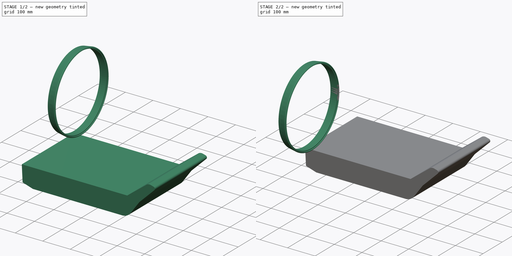
[diagram: build sequence overview — one tinted view per stage of 2, left to right]
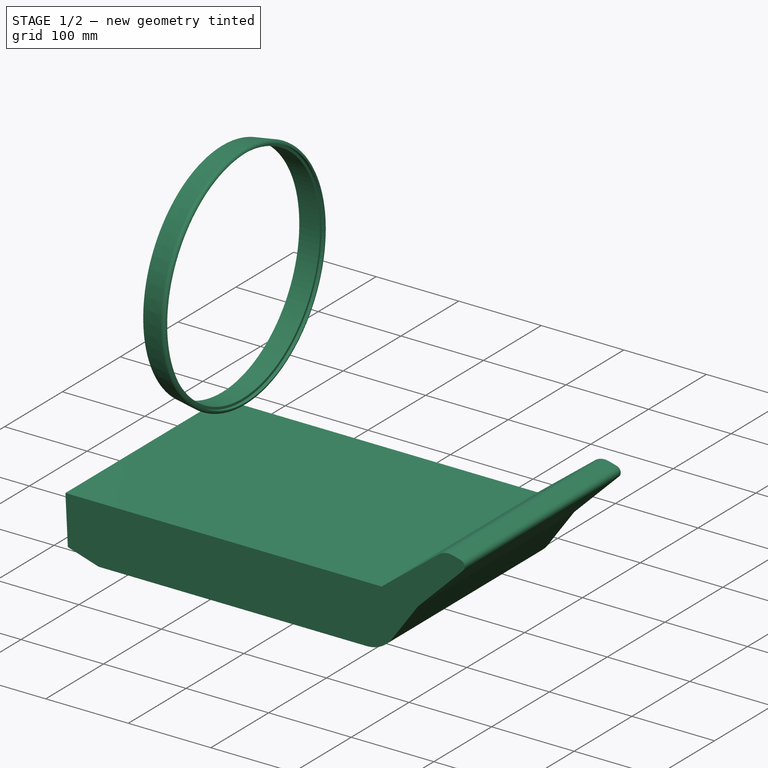
[diagram: stage 1 of 2 — iso view after this stage's code; geometry added in this stage tinted green]
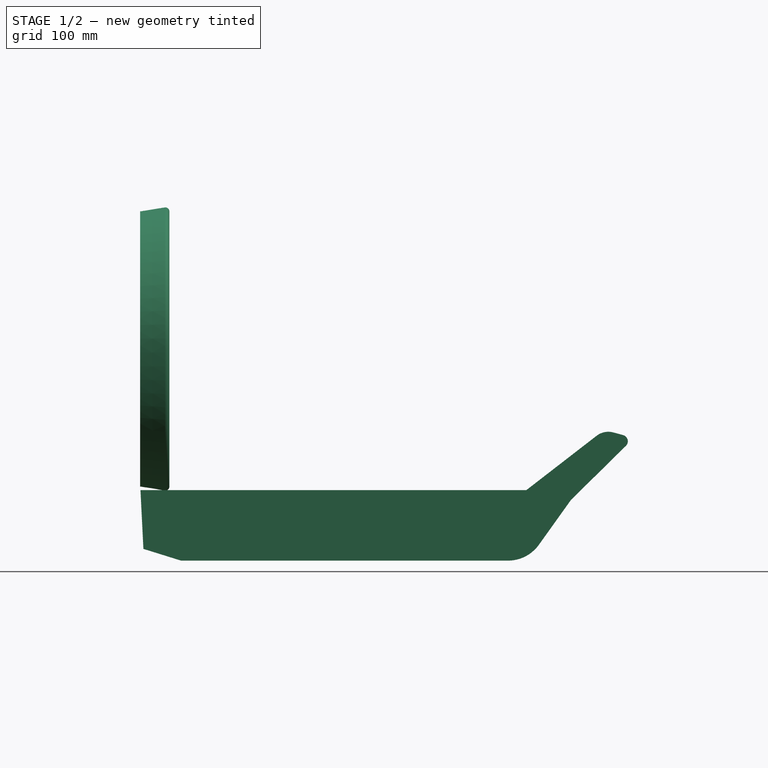
[diagram: stage 1 of 2 — front view after this stage's code; geometry added in this stage tinted green]
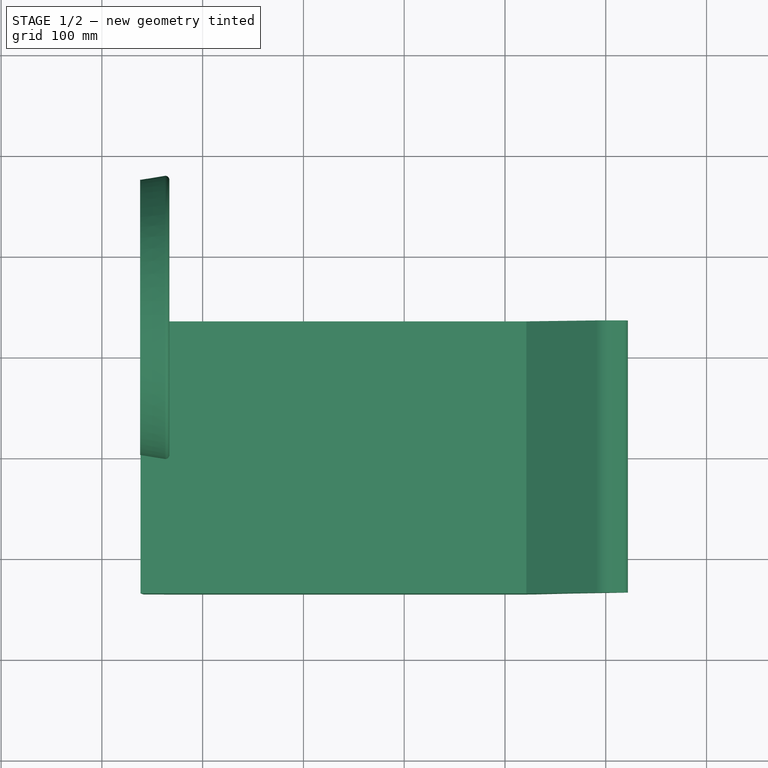
[diagram: stage 1 of 2 — top view after this stage's code; geometry added in this stage tinted green]
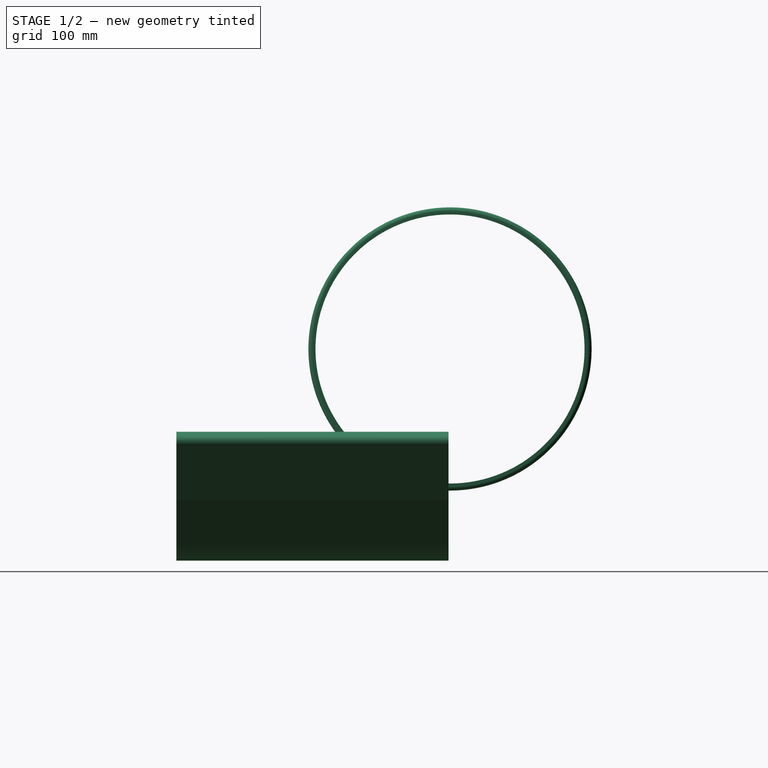
[diagram: stage 1 of 2 — right view after this stage's code; geometry added in this stage tinted green]
FCSTD DOCUMENT  (FreeCAD 0.16R6710 (Git))
Label: Untitled
License: All rights reserved
LicenseURL: http://en.wikipedia.org/wiki/All_rights_reserved
objects: Sketcher::SketchObject×3, App::MeasureDistance×3, PartDesign::Pad×2, Part::Feature×2, PartDesign::Revolution×1, Part::Mirroring×1, Part::FeaturePython×1, Part::Cut×1
note: 15 computed .brp shape members not serialized (recipe doc carries the construction recipe); baked Part::Feature solids carry a one-line shape summary decoded from their .brp

FEATURE [Sketcher::SketchObject] Sketch001
  Placement = pos=(-162,136.5,210) rot=(1,0,0;1.5708rad)
  sketch-geometry (6):
    g0: LineSegment StartX=0 StartY=133.5 StartZ=0 EndX=25 EndY=133.5 EndZ=0
    g1: LineSegment StartX=24.36 StartY=140.448 StartZ=0 EndX=0 EndY=136.5 EndZ=0
    g2: LineSegment StartX=0 StartY=136.5 StartZ=0 EndX=0 EndY=133.5 EndZ=0
    g3: LineSegment StartX=29 StartY=136.5 StartZ=0 EndX=25 EndY=136.5 EndZ=0
    g4: LineSegment StartX=25 StartY=136.5 StartZ=0 EndX=25 EndY=133.5 EndZ=0
    g5: ArcOfCircle CenterX=25 CenterY=136.5 CenterZ=0 NormalX=0 NormalY=0 NormalZ=1 Radius=4 StartAngle=0 EndAngle=1.73149
  constraints (17):
    c: PointOnObject(g0,g-2)
    c: Horizontal(g0)
    c: Coincident(g2,g1)
    c: Coincident(g2,g0)
    c: Perpendicular(g2,g0)
    c: Horizontal(g3)
    c: Coincident(g4,g3)
    c: Vertical(g4)
    c: Distance(g0) = 25
    c: Distance(g2) = 3
    c: Tangent(g1,g5) = -1.5708
    c: DistanceY(g0,g3) = 3
    c: Coincident(g4,g0)
    c: DistanceY(g-1,g0) = 133.5
    c: Coincident(g5,g3)
    c: Coincident(g5,g3)
    c: Distance(g3) = 4
FEATURE [PartDesign::Revolution] Revolution
  Angle = 360
  Axis = (1,0,0)
  Base = (-162,136.5,210)
  Placement = pos=(-162,136.5,210) rot=(1,0,0;1.5708rad)
  ReferenceAxis = -> Sketch001 [H_Axis]
  Sketch = -> Sketch001
FEATURE [Part::FeaturePython] Ship  # WARN: FeaturePython — macro-defined, semantics opaque (R4)
  Breadth = 270
  Draft = 63.92
  IsShip = true
  LSections = [-0.2418,-0.216347,-0.190895,-0.165442,-0.139989,-0.114537,-0.0890842,-0.0636316,-0.0381789,-0.0127263,0.0127263,0.0381789,0.0636316,0.0890842,0.114537,0.139989,0.165442,0.190895,0.216347,0.2418]
  Length = 483.6
  TSections = [0.003196,0.006392,0.009588,0.012784,0.01598,0.019176,0.022372,0.025568,0.028764,0.03196,0.035156,0.038352,0.041548,0.044744,0.04794,0.051136,0.054332,0.057528,0.060724,0.06392]
FEATURE [Part::Feature] Shape001  label="OutlineDraw"
  shape: bbox 483.6 x 270 x 127.9 mm, 0 faces, 0 solids (baked)
FEATURE [Part::Feature] Shape002  label="OutlineDraw001"
  shape: bbox 483.6 x 270 x 127.9 mm, 0 faces, 0 solids (baked)
FEATURE [Sketcher::SketchObject] Sketch
  Placement = pos=(0,0,0) rot=(1,0,0;1.5708rad)
  Support = -> Cut [Face13]
  sketch-geometry (11):
    g0: LineSegment StartX=-121.472 StartY=0 StartZ=0 EndX=203.053 EndY=0 EndZ=0
    g1: LineSegment StartX=317.161 StartY=124.593 StartZ=0 EndX=307.418 EndY=127.209 EndZ=0
    g2: LineSegment StartX=290.943 StartY=123.904 StartZ=0 EndX=221.249 EndY=70 EndZ=0
    g3: LineSegment StartX=221.249 StartY=70 StartZ=0 EndX=-161.711 EndY=70 EndZ=0
    g4: LineSegment StartX=-158.787 StartY=11.6416 StartZ=0 EndX=-121.472 EndY=0 EndZ=0
    g5: LineSegment StartX=233.61 StartY=15.7044 StartZ=0 EndX=265.576 EndY=60.3534 EndZ=0
    g6: LineSegment StartX=265.576 StartY=60.3534 StartZ=0 EndX=319.983 EndY=113.874 EndZ=0
    g7: ArcOfCircle CenterX=315.505 CenterY=118.426 CenterZ=0 NormalX=0 NormalY=0 NormalZ=1 Radius=6.38518 StartAngle=5.48958 EndAngle=7.59158
    g8: ArcOfCircle CenterX=302.513 CenterY=108.945 CenterZ=0 NormalX=0 NormalY=0 NormalZ=1 Radius=18.9114 StartAngle=1.3084 EndAngle=2.22914
    g9: LineSegment StartX=-161.711 StartY=70 StartZ=0 EndX=-158.787 EndY=11.6416 EndZ=0
    g10: ArcOfCircle CenterX=203.053 CenterY=37.5817 CenterZ=0 NormalX=0 NormalY=0 NormalZ=1 Radius=37.5817 StartAngle=4.71239 EndAngle=5.66184
  constraints (15):
    c: PointOnObject(g0,g-1)
    c: Coincident(g3,g2)
    c: Horizontal(g3)
    c: Coincident(g4,g0)
    c: Coincident(g5,g6)
    c: DistanceY(g0,g3) = 70
    c: Tangent(g6,g7) = -1.5708
    c: Tangent(g1,g7) = -1.5708
    c: Tangent(g1,g8) = -1.5708
    c: Tangent(g2,g8) = -1.5708
    c: Coincident(g9,g3)
    c: Coincident(g9,g4)
    c: Tangent(g0,g10) = -1.5708
    c: Tangent(g5,g10) = -1.5708
    c: Horizontal(g0)
FEATURE [PartDesign::Pad] Pad
  Length = 270
  Length2 = 100
  Midplane = true
  Placement = pos=(0,0,0) rot=(1,0,0;1.5708rad)
  Sketch = -> Sketch
  Type = 0
FEATURE [Part::Cut] Cut
  Base = -> Pad
  Tool = -> Pad001
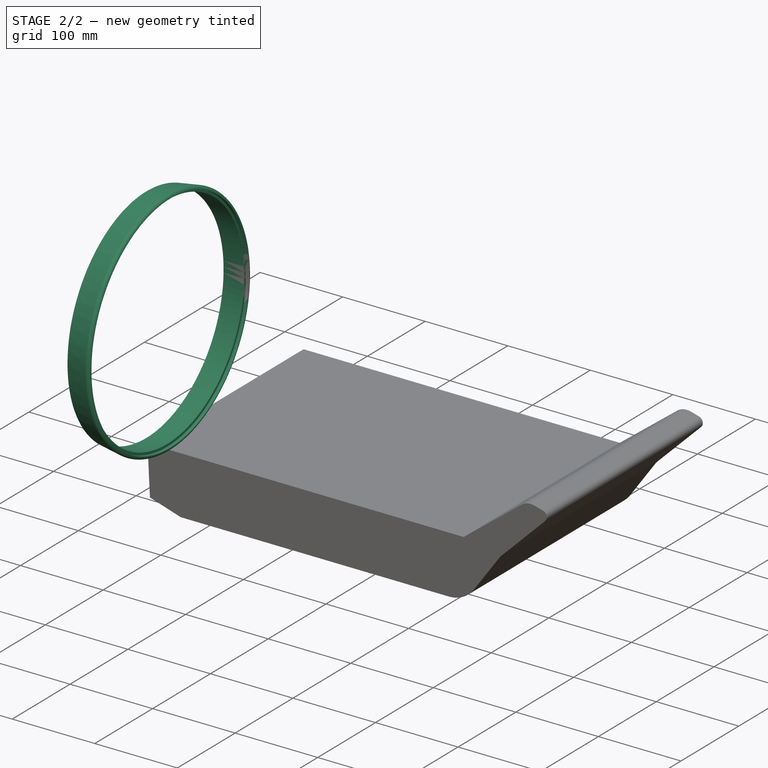
[diagram: stage 2 of 2 — iso view after this stage's code; geometry added in this stage tinted green]
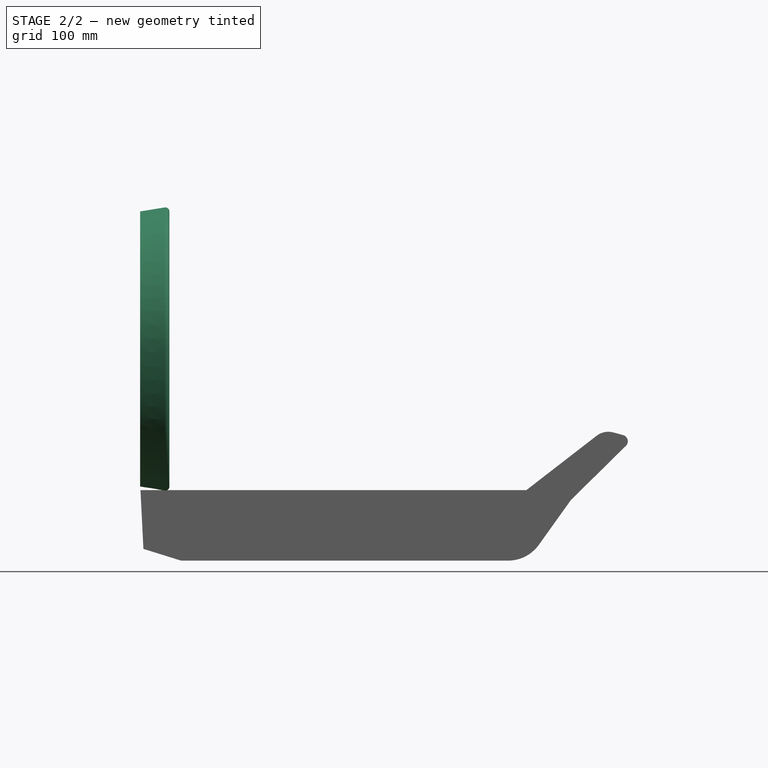
[diagram: stage 2 of 2 — front view after this stage's code; geometry added in this stage tinted green]
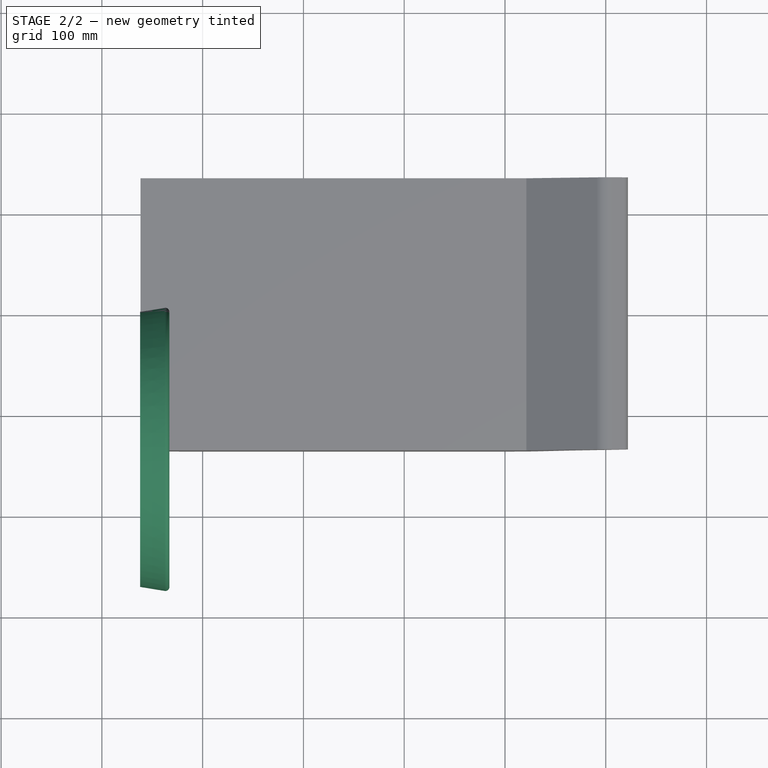
[diagram: stage 2 of 2 — top view after this stage's code; geometry added in this stage tinted green]
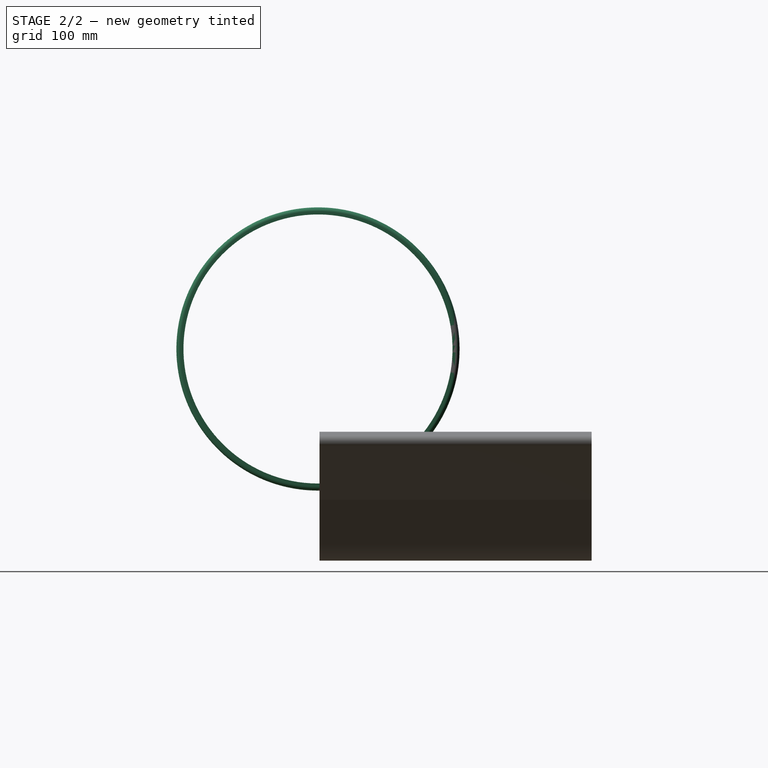
[diagram: stage 2 of 2 — right view after this stage's code; geometry added in this stage tinted green]
FEATURE [Sketcher::SketchObject] Sketch003
  Placement = pos=(0,0,0) rot=(1,0,0;1.5708rad)
  sketch-geometry (20):
    g0: LineSegment StartX=-116.973 StartY=8.36346 StartZ=0 EndX=194.564 EndY=8.36346 EndZ=0
    g1: LineSegment StartX=302.812 StartY=113.529 StartZ=0 EndX=297.027 EndY=114.28 EndZ=0
    g2: LineSegment StartX=288.205 StartY=111.775 StartZ=0 EndX=223.358 EndY=59.0752 EndZ=0
    g3: LineSegment StartX=223.358 StartY=59.0752 StartZ=0 EndX=190.531 EndY=59.0752 EndZ=0
    g4: LineSegment StartX=226.721 StartY=24.202 StartZ=0 EndX=260.597 EndY=68.2614 EndZ=0
    g5: LineSegment StartX=260.597 StartY=68.2614 StartZ=0 EndX=303.912 EndY=110.209 EndZ=0
    g6: ArcOfCircle CenterX=302.562 CenterY=111.604 CenterZ=0 NormalX=0 NormalY=0 NormalZ=1 Radius=1.94113 StartAngle=5.48175 EndAngle=7.72485
    g7: ArcOfCircle CenterX=295.532 CenterY=102.76 CenterZ=0 NormalX=0 NormalY=0 NormalZ=1 Radius=11.6163 StartAngle=1.44166 EndAngle=2.25322
    g8: LineSegment StartX=-148.302 StartY=59.0752 StartZ=0 EndX=-148.336 EndY=18.5067 EndZ=0
    g9: ArcOfCircle CenterX=194.564 CenterY=48.9267 CenterZ=0 NormalX=0 NormalY=0 NormalZ=1 Radius=40.5633 StartAngle=4.71239 EndAngle=5.62771
    g10: LineSegment StartX=-148.336 StartY=18.5067 StartZ=0 EndX=-127.293 EndY=11.7012 EndZ=0
    g11: LineSegment StartX=-122.475 StartY=88.3793 StartZ=0 EndX=-122.475 EndY=65.0046 EndZ=0
    g12: LineSegment StartX=-122.475 StartY=65.0046 StartZ=0 EndX=-108.164 EndY=65.0046 EndZ=0
    g13: LineSegment StartX=-108.164 StartY=65.0046 StartZ=0 EndX=-116.973 EndY=8.36346 EndZ=0
    g14: LineSegment StartX=203.919 StartY=88.3793 StartZ=0 EndX=203.919 EndY=64.0812 EndZ=0
    g15: LineSegment StartX=203.919 StartY=64.0812 StartZ=0 EndX=190.531 EndY=64.0812 EndZ=0
    g16: LineSegment StartX=190.531 StartY=64.0812 StartZ=0 EndX=190.531 EndY=59.0752 EndZ=0
    g17: LineSegment StartX=-122.475 StartY=88.3793 StartZ=0 EndX=203.919 EndY=88.3793 EndZ=0
    g18: LineSegment StartX=-120.988 StartY=59.0752 StartZ=0 EndX=-127.293 EndY=11.7012 EndZ=0
    g19: LineSegment StartX=-120.988 StartY=59.0752 StartZ=0 EndX=-148.302 EndY=59.0752 EndZ=0
  constraints (29):
    c: Coincident(g3,g2)
    c: Horizontal(g3)
    c: Coincident(g4,g5)
    c: Tangent(g5,g6) = -1.5708
    c: Tangent(g1,g6) = -1.5708
    c: Tangent(g1,g7) = -1.5708
    c: Tangent(g2,g7) = -1.5708
    c: Coincident(g8,g19)
    c: Tangent(g0,g9) = -1.5708
    c: Tangent(g4,g9) = -1.5708
    c: Horizontal(g0)
    c: Coincident(g10,g8)
    c: Vertical(g11)
    c: Coincident(g12,g11)
    c: Horizontal(g12)
    c: Coincident(g13,g12)
    c: Coincident(g13,g0)
    c: Vertical(g14)
    c: Coincident(g15,g14)
    c: Horizontal(g15)
    c: Coincident(g16,g15)
    c: Vertical(g16)
    c: Coincident(g17,g11)
    c: Horizontal(g17)
    c: Coincident(g14,g17)
    c: Coincident(g19,g18)
    c: Tangent(g3,g19)
    c: Coincident(g10,g18)
    c: Coincident(g3,g16)
FEATURE [PartDesign::Pad] Pad001
  Length = 260
  Length2 = 100
  Midplane = true
  Placement = pos=(0,0,0) rot=(1,0,0;1.5708rad)
  Sketch = -> Sketch003
  Type = 0
FEATURE [App::MeasureDistance] Distance  label="Distance: 382,96 mm"
  Distance = 382.96
  P1 = (-161.711,-135,70)
  P2 = (221.249,-135,70)
FEATURE [App::MeasureDistance] Distance001  label="Distance: 70 mm"
  Distance = 70
  P1 = (-0.085987,-135,0)
  P2 = (-0.085987,-135,70)
FEATURE [App::MeasureDistance] Distance002  label="Distance: 268,615 mm"
  Distance = 268.615
  P1 = (-161.711,134.457,70)
  P2 = (-161.711,-134.158,70)
FEATURE [Part::Mirroring] Part__Mirroring  label="Revolution (Mirror #1)"
  Base = (0,0,0)
  Normal = (0,1,0)
  Source = -> Revolution
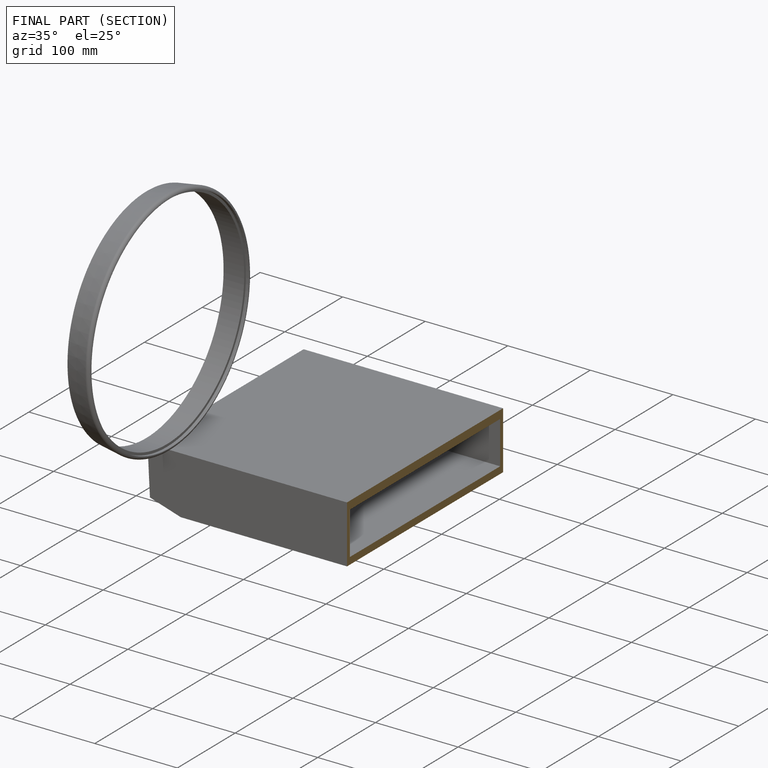
[diagram: finished part — half-section view (interior)]
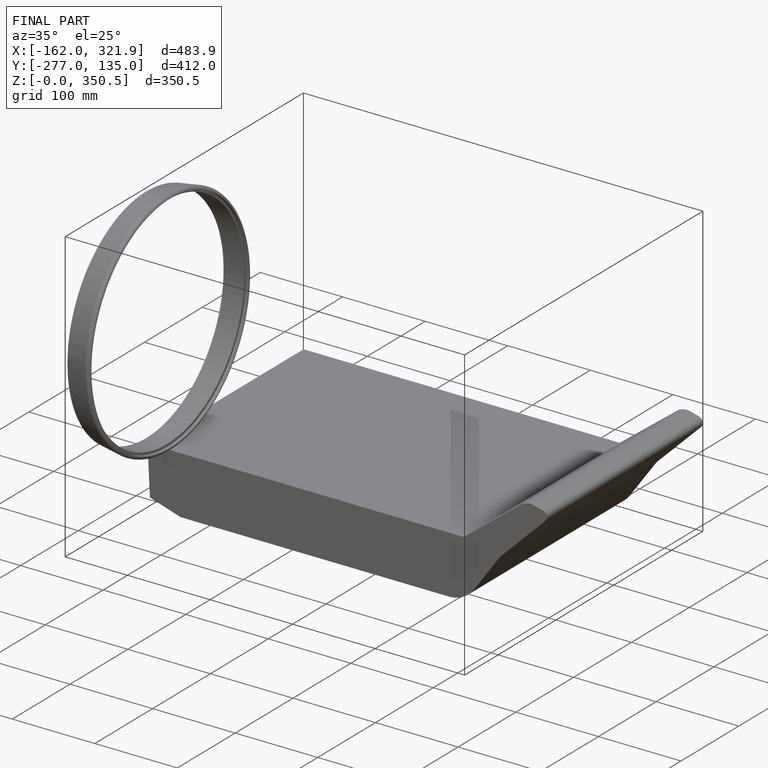
[diagram: finished part — iso view with bounding-box wireframe]
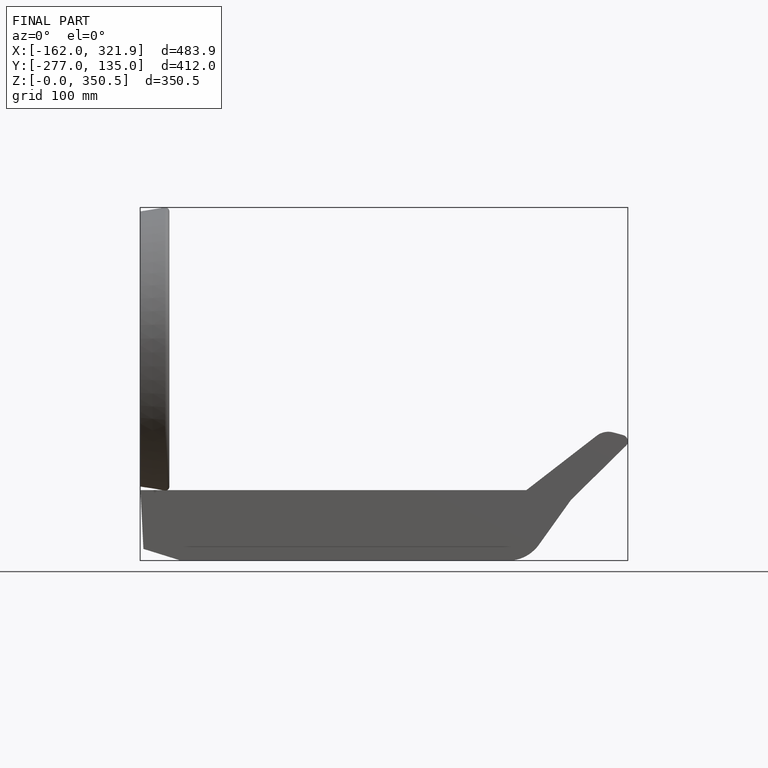
[diagram: finished part — front view with bounding-box wireframe]
